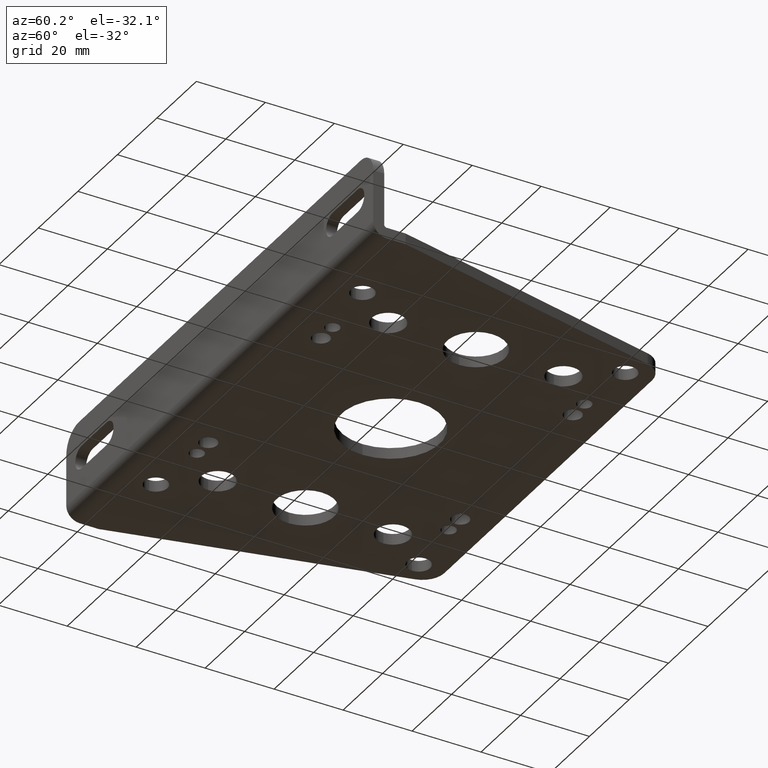
[diagram: clean part render]
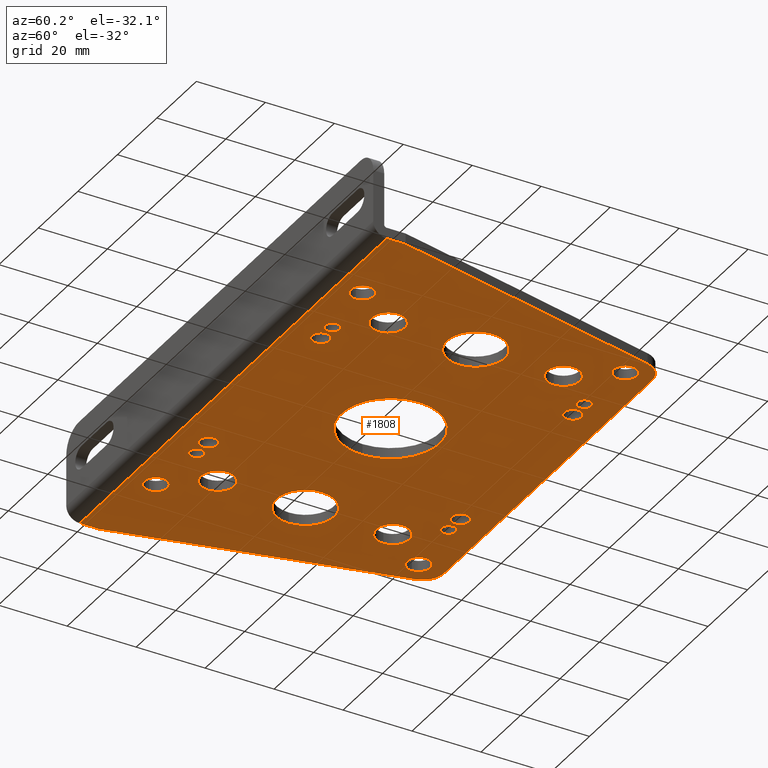
[diagram: same view with one face highlighted and labeled with its STEP entity id]
A machine part, auxiliary view. The second image highlights one B-rep face of the part: STEP entity #1808.
In plain terms, the highlighted planar face has unit normal (0, 0, 1).
Its self-contained STEP definition (entity closure, byte-faithful):
#3 = FACE_OUTER_BOUND ( 'NONE', #402, .T. ) ;
#8 = EDGE_CURVE ( 'NONE', #2010, #1952, #1980, .T. ) ;
#11 = VERTEX_POINT ( 'NONE', #990 ) ;
#26 = EDGE_LOOP ( 'NONE', ( #1061, #1508 ) ) ;
#27 = VERTEX_POINT ( 'NONE', #2195 ) ;
#28 = DIRECTION ( 'NONE',  ( 0.0000000000000000000, 0.0000000000000000000, 1.000000000000000000 ) ) ;
#29 = CARTESIAN_POINT ( 'NONE',  ( 3.061999999999999800, 1.825000000000001500, -0.1250000000000000000 ) ) ;
#30 = CIRCLE ( 'NONE', #1020, 0.1899999999999998900 ) ;
#42 = DIRECTION ( 'NONE',  ( 1.000000000000000000, 0.0000000000000000000, 0.0000000000000000000 ) ) ;
#43 = CARTESIAN_POINT ( 'NONE',  ( 4.760000000000000700, 1.825000000000001500, -0.1250000000000000000 ) ) ;
#61 = FACE_BOUND ( 'NONE', #26, .T. ) ;
#68 = ORIENTED_EDGE ( 'NONE', *, *, #83, .F. ) ;
#72 = DIRECTION ( 'NONE',  ( 1.000000000000000000, 0.0000000000000000000, 0.0000000000000000000 ) ) ;
#83 = EDGE_CURVE ( 'NONE', #1598, #1240, #979, .T. ) ;
#84 = FACE_BOUND ( 'NONE', #2259, .T. ) ;
#85 = CARTESIAN_POINT ( 'NONE',  ( 5.375133197209614800, 3.431898472698106300, -0.1250000000000000000 ) ) ;
#86 = DIRECTION ( 'NONE',  ( 1.000000000000000000, 0.0000000000000000000, 0.0000000000000000000 ) ) ;
#87 = AXIS2_PLACEMENT_3D ( 'NONE', #936, #1120, #42 ) ;
#90 = CARTESIAN_POINT ( 'NONE',  ( 0.0000000000000000000, 0.02899999999999998400, -0.1250000000000000000 ) ) ;
#101 = EDGE_CURVE ( 'NONE', #1705, #1268, #1849, .T. ) ;
#102 = CARTESIAN_POINT ( 'NONE',  ( 6.120000000000000100, 0.2450000000000016300, -0.1250000000000000000 ) ) ;
#127 = VERTEX_POINT ( 'NONE', #312 ) ;
#135 = DIRECTION ( 'NONE',  ( 0.0000000000000000000, 0.0000000000000000000, 1.000000000000000000 ) ) ;
#136 = EDGE_CURVE ( 'NONE', #2199, #924, #1796, .T. ) ;
#138 = CARTESIAN_POINT ( 'NONE',  ( 1.133000000000000000, 0.3250000000000015700, -0.1250000000000000000 ) ) ;
#142 = CARTESIAN_POINT ( 'NONE',  ( 4.182000000000000400, 3.263000000000001200, -0.1250000000000000000 ) ) ;
#146 = FACE_BOUND ( 'NONE', #343, .T. ) ;
#149 = DIRECTION ( 'NONE',  ( 1.000000000000000000, 0.0000000000000000000, 0.0000000000000000000 ) ) ;
#151 = EDGE_CURVE ( 'NONE', #511, #394, #1741, .T. ) ;
#153 = VERTEX_POINT ( 'NONE', #1018 ) ;
#162 = AXIS2_PLACEMENT_3D ( 'NONE', #678, #1913, #862 ) ;
#165 = ORIENTED_EDGE ( 'NONE', *, *, #2299, .T. ) ;
#173 = VERTEX_POINT ( 'NONE', #1909 ) ;
#175 = ORIENTED_EDGE ( 'NONE', *, *, #1743, .T. ) ;
#176 = AXIS2_PLACEMENT_3D ( 'NONE', #1993, #943, #2168 ) ;
#181 = EDGE_CURVE ( 'NONE', #173, #938, #2214, .T. ) ;
#182 = ORIENTED_EDGE ( 'NONE', *, *, #1531, .T. ) ;
#183 = CARTESIAN_POINT ( 'NONE',  ( 1.626499999999999400, 0.3870000000000016200, -0.1250000000000000000 ) ) ;
#189 = CARTESIAN_POINT ( 'NONE',  ( 1.169999999999999700, 2.825000000000001100, -0.1250000000000000000 ) ) ;
#191 = DIRECTION ( 'NONE',  ( -0.0000000000000000000, -0.0000000000000000000, -1.000000000000000000 ) ) ;
#200 = VERTEX_POINT ( 'NONE', #384 ) ;
#210 = ORIENTED_EDGE ( 'NONE', *, *, #750, .T. ) ;
#215 = DIRECTION ( 'NONE',  ( 1.000000000000000000, 0.0000000000000000000, 0.0000000000000000000 ) ) ;
#226 = CARTESIAN_POINT ( 'NONE',  ( 0.7448668027903855300, 3.431898472698106300, -0.1250000000000000000 ) ) ;
#228 = DIRECTION ( 'NONE',  ( 1.000000000000000000, 0.0000000000000000000, -0.0000000000000000000 ) ) ;
#233 = ORIENTED_EDGE ( 'NONE', *, *, #314, .T. ) ;
#234 = CARTESIAN_POINT ( 'NONE',  ( 4.760000000000000700, 0.8250000000000017300, -0.1250000000000000000 ) ) ;
#239 = VERTEX_POINT ( 'NONE', #85 ) ;
#242 = CARTESIAN_POINT ( 'NONE',  ( 1.359999999999999700, 1.825000000000001500, -0.1250000000000000000 ) ) ;
#246 = AXIS2_PLACEMENT_3D ( 'NONE', #1794, #745, #1975 ) ;
#260 = VERTEX_POINT ( 'NONE', #1495 ) ;
#272 = CARTESIAN_POINT ( 'NONE',  ( 4.760000000000000700, 2.825000000000001100, -0.1250000000000000000 ) ) ;
#276 = AXIS2_PLACEMENT_3D ( 'NONE', #2265, #1225, #149 ) ;
#280 = ORIENTED_EDGE ( 'NONE', *, *, #909, .T. ) ;
#287 = VERTEX_POINT ( 'NONE', #437 ) ;
#293 = DIRECTION ( 'NONE',  ( -1.000000000000000000, -0.0000000000000000000, -0.0000000000000000000 ) ) ;
#296 = ORIENTED_EDGE ( 'NONE', *, *, #413, .T. ) ;
#308 = DIRECTION ( 'NONE',  ( 1.000000000000000000, 0.0000000000000000000, 0.0000000000000000000 ) ) ;
#312 = CARTESIAN_POINT ( 'NONE',  ( 1.837499999999999900, 3.263000000000001200, -0.1250000000000000000 ) ) ;
#313 = DIRECTION ( 'NONE',  ( 0.2275938907924206500, -0.9737561403523818900, 0.0000000000000000000 ) ) ;
#314 = EDGE_CURVE ( 'NONE', #1754, #710, #1209, .T. ) ;
#315 = EDGE_LOOP ( 'NONE', ( #175, #2258 ) ) ;
#317 = CIRCLE ( 'NONE', #1323, 0.08149999999999993400 ) ;
#319 = CIRCLE ( 'NONE', #1950, 0.5624999999999997800 ) ;
#321 = VERTEX_POINT ( 'NONE', #1522 ) ;
#326 = AXIS2_PLACEMENT_3D ( 'NONE', #720, #1948, #897 ) ;
#330 = AXIS2_PLACEMENT_3D ( 'NONE', #1140, #812, #308 ) ;
#343 = EDGE_LOOP ( 'NONE', ( #1637, #2254 ) ) ;
#344 = EDGE_CURVE ( 'NONE', #2141, #1326, #1660, .T. ) ;
#350 = EDGE_LOOP ( 'NONE', ( #296, #1548 ) ) ;
#359 = VERTEX_POINT ( 'NONE', #624 ) ;
#364 = AXIS2_PLACEMENT_3D ( 'NONE', #1285, #1293, #228 ) ;
#367 = CIRCLE ( 'NONE', #1713, 0.5624999999999997800 ) ;
#372 = EDGE_LOOP ( 'NONE', ( #280, #1030 ) ) ;
#375 = DIRECTION ( 'NONE',  ( 0.0000000000000000000, 1.000000000000000000, 0.0000000000000000000 ) ) ;
#380 = CARTESIAN_POINT ( 'NONE',  ( 4.950000000000000200, 2.825000000000001100, -0.1250000000000000000 ) ) ;
#384 = CARTESIAN_POINT ( 'NONE',  ( 0.9883058378784832500, 3.625000000000000900, -0.1250000000000000000 ) ) ;
#388 = VERTEX_POINT ( 'NONE', #444 ) ;
#392 = EDGE_LOOP ( 'NONE', ( #1087, #1744 ) ) ;
#394 = VERTEX_POINT ( 'NONE', #1718 ) ;
#395 = CARTESIAN_POINT ( 'NONE',  ( 4.987000000000001000, 3.325000000000001100, -0.1250000000000000000 ) ) ;
#402 = EDGE_LOOP ( 'NONE', ( #2118, #2060, #2055, #68, #619, #1097, #1577, #1062 ) ) ;
#412 = DIRECTION ( 'NONE',  ( 1.000000000000000000, 0.0000000000000000000, 0.0000000000000000000 ) ) ;
#413 = EDGE_CURVE ( 'NONE', #1952, #2010, #1502, .T. ) ;
#416 = CARTESIAN_POINT ( 'NONE',  ( 5.119000000000000700, 3.325000000000001100, -0.1250000000000000000 ) ) ;
#418 = AXIS2_PLACEMENT_3D ( 'NONE', #272, #1518, #2038 ) ;
#421 = EDGE_LOOP ( 'NONE', ( #210, #635 ) ) ;
#422 = DIRECTION ( 'NONE',  ( 1.000000000000000000, 0.0000000000000000000, 0.0000000000000000000 ) ) ;
#437 = CARTESIAN_POINT ( 'NONE',  ( 0.0000000000000000000, 0.2450000000000007400, -0.1250000000000000000 ) ) ;
#438 = VECTOR ( 'NONE', #313, 39.37007874015748900 ) ;
#444 = CARTESIAN_POINT ( 'NONE',  ( 4.430000000000000600, 1.825000000000001500, -0.1250000000000000000 ) ) ;
#451 = DIRECTION ( 'NONE',  ( 0.0000000000000000000, 0.0000000000000000000, 1.000000000000000000 ) ) ;
#452 = CIRCLE ( 'NONE', #2234, 0.1319999999999999800 ) ;
#453 = DIRECTION ( 'NONE',  ( 0.0000000000000000000, 0.0000000000000000000, 1.000000000000000000 ) ) ;
#457 = AXIS2_PLACEMENT_3D ( 'NONE', #1513, #451, #1683 ) ;
#487 = FACE_BOUND ( 'NONE', #629, .T. ) ;
#493 = CARTESIAN_POINT ( 'NONE',  ( 5.330000000000000100, 3.625000000000000900, -0.1250000000000000000 ) ) ;
#502 = LINE ( 'NONE', #1033, #1388 ) ;
#511 = VERTEX_POINT ( 'NONE', #1316 ) ;
#513 = EDGE_LOOP ( 'NONE', ( #1111, #165 ) ) ;
#521 = CARTESIAN_POINT ( 'NONE',  ( 2.038500000000000000, 3.263000000000001200, -0.1250000000000000000 ) ) ;
#526 = CARTESIAN_POINT ( 'NONE',  ( 1.029999999999999600, 1.825000000000001500, -0.1250000000000000000 ) ) ;
#537 = LINE ( 'NONE', #2138, #789 ) ;
#538 = CIRCLE ( 'NONE', #457, 0.1004999999999999200 ) ;
#540 = FACE_BOUND ( 'NONE', #1220, .T. ) ;
#542 = DIRECTION ( 'NONE',  ( 1.000000000000000000, 0.0000000000000000000, 0.0000000000000000000 ) ) ;
#545 = VERTEX_POINT ( 'NONE', #1833 ) ;
#546 = ORIENTED_EDGE ( 'NONE', *, *, #1716, .T. ) ;
#556 = CARTESIAN_POINT ( 'NONE',  ( 4.182000000000000400, 0.3870000000000016200, -0.1250000000000000000 ) ) ;
#561 = FACE_BOUND ( 'NONE', #1377, .T. ) ;
#562 = DIRECTION ( 'NONE',  ( 0.0000000000000000000, 0.0000000000000000000, 1.000000000000000000 ) ) ;
#564 = ORIENTED_EDGE ( 'NONE', *, *, #101, .T. ) ;
#579 = CARTESIAN_POINT ( 'NONE',  ( 1.000999999999999900, 3.325000000000001100, -0.1250000000000000000 ) ) ;
#595 = DIRECTION ( 'NONE',  ( 1.000000000000000000, 0.0000000000000000000, 0.0000000000000000000 ) ) ;
#598 = ORIENTED_EDGE ( 'NONE', *, *, #1612, .T. ) ;
#608 = DIRECTION ( 'NONE',  ( 0.0000000000000000000, 0.0000000000000000000, 1.000000000000000000 ) ) ;
#613 = FACE_BOUND ( 'NONE', #907, .T. ) ;
#618 = CIRCLE ( 'NONE', #892, 0.1319999999999995600 ) ;
#619 = ORIENTED_EDGE ( 'NONE', *, *, #1824, .T. ) ;
#622 = DIRECTION ( 'NONE',  ( 0.0000000000000000000, 0.0000000000000000000, 1.000000000000000000 ) ) ;
#624 = CARTESIAN_POINT ( 'NONE',  ( 1.837499999999999900, 0.3870000000000016200, -0.1250000000000000000 ) ) ;
#629 = EDGE_LOOP ( 'NONE', ( #2093, #2075 ) ) ;
#635 = ORIENTED_EDGE ( 'NONE', *, *, #2047, .T. ) ;
#646 = CIRCLE ( 'NONE', #326, 0.1004999999999999200 ) ;
#650 = DIRECTION ( 'NONE',  ( 1.000000000000000000, 0.0000000000000000000, 0.0000000000000000000 ) ) ;
#655 = EDGE_CURVE ( 'NONE', #710, #1754, #1879, .T. ) ;
#661 = DIRECTION ( 'NONE',  ( 0.0000000000000000000, 1.000000000000000000, 0.0000000000000000000 ) ) ;
#666 = DIRECTION ( 'NONE',  ( -0.0000000000000000000, -0.0000000000000000000, -1.000000000000000000 ) ) ;
#668 = DIRECTION ( 'NONE',  ( 1.000000000000000000, 0.0000000000000000000, 0.0000000000000000000 ) ) ;
#673 = DIRECTION ( 'NONE',  ( 0.0000000000000000000, 0.0000000000000000000, 1.000000000000000000 ) ) ;
#678 = CARTESIAN_POINT ( 'NONE',  ( 1.000999999999999900, 3.325000000000001100, -0.1250000000000000000 ) ) ;
#693 = CARTESIAN_POINT ( 'NONE',  ( 6.120000000000000100, 0.02899999999999998400, -0.1250000000000000000 ) ) ;
#697 = AXIS2_PLACEMENT_3D ( 'NONE', #1720, #666, #1901 ) ;
#698 = CARTESIAN_POINT ( 'NONE',  ( 5.119000000000000700, 0.3250000000000015700, -0.1250000000000000000 ) ) ;
#705 = VERTEX_POINT ( 'NONE', #947 ) ;
#707 = CIRCLE ( 'NONE', #697, 0.2499999999999998100 ) ;
#708 = EDGE_CURVE ( 'NONE', #1248, #27, #893, .T. ) ;
#710 = VERTEX_POINT ( 'NONE', #1128 ) ;
#712 = ORIENTED_EDGE ( 'NONE', *, *, #2236, .T. ) ;
#714 = AXIS2_PLACEMENT_3D ( 'NONE', #1374, #135, #1208 ) ;
#715 = VERTEX_POINT ( 'NONE', #1641 ) ;
#720 = CARTESIAN_POINT ( 'NONE',  ( 1.937999999999999900, 3.263000000000001200, -0.1250000000000000000 ) ) ;
#721 = VERTEX_POINT ( 'NONE', #226 ) ;
#732 = EDGE_CURVE ( 'NONE', #2173, #715, #950, .T. ) ;
#735 = AXIS2_PLACEMENT_3D ( 'NONE', #698, #879, #1067 ) ;
#737 = CIRCLE ( 'NONE', #176, 0.1899999999999998900 ) ;
#740 = DIRECTION ( 'NONE',  ( 1.000000000000000000, 0.0000000000000000000, 0.0000000000000000000 ) ) ;
#742 = EDGE_CURVE ( 'NONE', #394, #511, #2245, .T. ) ;
#745 = DIRECTION ( 'NONE',  ( 0.0000000000000000000, 0.0000000000000000000, 1.000000000000000000 ) ) ;
#750 = EDGE_CURVE ( 'NONE', #1342, #1112, #1769, .T. ) ;
#758 = DIRECTION ( 'NONE',  ( 1.000000000000000000, 0.0000000000000000000, 0.0000000000000000000 ) ) ;
#759 = CARTESIAN_POINT ( 'NONE',  ( 5.251000000000000300, 0.3250000000000015700, -0.1250000000000000000 ) ) ;
#789 = VECTOR ( 'NONE', #375, 39.37007874015748100 ) ;
#801 = AXIS2_PLACEMENT_3D ( 'NONE', #1261, #191, #1433 ) ;
#805 = CARTESIAN_POINT ( 'NONE',  ( 4.411999999999999900, 0.3870000000000016200, -0.1250000000000000000 ) ) ;
#812 = DIRECTION ( 'NONE',  ( 0.0000000000000000000, 0.0000000000000000000, 1.000000000000000000 ) ) ;
#822 = CARTESIAN_POINT ( 'NONE',  ( 4.282500000000000600, 0.3870000000000016200, -0.1250000000000000000 ) ) ;
#823 = CARTESIAN_POINT ( 'NONE',  ( 1.937999999999999900, 0.3870000000000016200, -0.1250000000000000000 ) ) ;
#842 = DIRECTION ( 'NONE',  ( 0.2275938907924206500, 0.9737561403523818900, 0.0000000000000000000 ) ) ;
#847 = CARTESIAN_POINT ( 'NONE',  ( 5.119000000000000700, 0.3250000000000015700, -0.1250000000000000000 ) ) ;
#850 = CARTESIAN_POINT ( 'NONE',  ( 1.359999999999999700, 1.825000000000001500, -0.1250000000000000000 ) ) ;
#853 = EDGE_CURVE ( 'NONE', #388, #1054, #1819, .T. ) ;
#861 = DIRECTION ( 'NONE',  ( 0.0000000000000000000, 0.0000000000000000000, 1.000000000000000000 ) ) ;
#862 = DIRECTION ( 'NONE',  ( 1.000000000000000000, 0.0000000000000000000, 0.0000000000000000000 ) ) ;
#879 = DIRECTION ( 'NONE',  ( 0.0000000000000000000, 0.0000000000000000000, 1.000000000000000000 ) ) ;
#883 = CARTESIAN_POINT ( 'NONE',  ( 1.707999999999999300, 0.3870000000000016200, -0.1250000000000000000 ) ) ;
#885 = DIRECTION ( 'NONE',  ( 0.0000000000000000000, 0.0000000000000000000, 1.000000000000000000 ) ) ;
#892 = AXIS2_PLACEMENT_3D ( 'NONE', #416, #1654, #595 ) ;
#893 = CIRCLE ( 'NONE', #2146, 0.1005000000000002000 ) ;
#897 = DIRECTION ( 'NONE',  ( 1.000000000000000000, 0.0000000000000000000, 0.0000000000000000000 ) ) ;
#904 = LINE ( 'NONE', #951, #1830 ) ;
#905 = EDGE_LOOP ( 'NONE', ( #233, #1159 ) ) ;
#907 = EDGE_LOOP ( 'NONE', ( #1462, #598 ) ) ;
#909 = EDGE_CURVE ( 'NONE', #1239, #1835, #1304, .T. ) ;
#912 = CARTESIAN_POINT ( 'NONE',  ( 0.8689999999999998800, 3.325000000000001100, -0.1250000000000000000 ) ) ;
#914 = CIRCLE ( 'NONE', #1511, 0.08149999999999993400 ) ;
#923 = AXIS2_PLACEMENT_3D ( 'NONE', #1685, #453, #2175 ) ;
#924 = VERTEX_POINT ( 'NONE', #189 ) ;
#936 = CARTESIAN_POINT ( 'NONE',  ( 4.760000000000000700, 2.825000000000001100, -0.1250000000000000000 ) ) ;
#938 = VERTEX_POINT ( 'NONE', #1593 ) ;
#939 = CARTESIAN_POINT ( 'NONE',  ( 4.182000000000000400, 3.263000000000001200, -0.1250000000000000000 ) ) ;
#943 = DIRECTION ( 'NONE',  ( 0.0000000000000000000, 0.0000000000000000000, 1.000000000000000000 ) ) ;
#945 = VERTEX_POINT ( 'NONE', #526 ) ;
#947 = CARTESIAN_POINT ( 'NONE',  ( 1.689999999999999700, 1.825000000000001500, -0.1250000000000000000 ) ) ;
#950 = CIRCLE ( 'NONE', #923, 0.08149999999999993400 ) ;
#951 = CARTESIAN_POINT ( 'NONE',  ( 6.120000000000000100, 0.02899999999999998400, -0.1250000000000000000 ) ) ;
#954 = AXIS2_PLACEMENT_3D ( 'NONE', #142, #1215, #2256 ) ;
#961 = FACE_BOUND ( 'NONE', #372, .T. ) ;
#974 = CIRCLE ( 'NONE', #714, 0.08149999999999967000 ) ;
#979 = LINE ( 'NONE', #999, #1395 ) ;
#990 = CARTESIAN_POINT ( 'NONE',  ( 2.038500000000000000, 0.3870000000000016200, -0.1250000000000000000 ) ) ;
#992 = AXIS2_PLACEMENT_3D ( 'NONE', #847, #2215, #1171 ) ;
#994 = CARTESIAN_POINT ( 'NONE',  ( 5.251000000000000300, 3.325000000000001100, -0.1250000000000000000 ) ) ;
#998 = CARTESIAN_POINT ( 'NONE',  ( 4.493500000000000000, 0.3870000000000016200, -0.1250000000000000000 ) ) ;
#999 = CARTESIAN_POINT ( 'NONE',  ( 6.120000000000000100, 0.0000000000000000000, -0.1250000000000000000 ) ) ;
#1003 = DIRECTION ( 'NONE',  ( 1.000000000000000000, 0.0000000000000000000, 0.0000000000000000000 ) ) ;
#1018 = CARTESIAN_POINT ( 'NONE',  ( 1.789499999999999200, 0.3870000000000016200, -0.1250000000000000000 ) ) ;
#1020 = AXIS2_PLACEMENT_3D ( 'NONE', #1665, #608, #1841 ) ;
#1024 = EDGE_CURVE ( 'NONE', #1054, #388, #1498, .T. ) ;
#1025 = FACE_BOUND ( 'NONE', #1810, .T. ) ;
#1030 = ORIENTED_EDGE ( 'NONE', *, *, #1983, .T. ) ;
#1032 = DIRECTION ( 'NONE',  ( 1.000000000000000000, 0.0000000000000000000, 0.0000000000000000000 ) ) ;
#1033 = CARTESIAN_POINT ( 'NONE',  ( 0.0000000000000000000, 0.2450000000000008000, -0.1250000000000000000 ) ) ;
#1038 = DIRECTION ( 'NONE',  ( 1.000000000000000000, 0.0000000000000000000, 0.0000000000000000000 ) ) ;
#1041 = CIRCLE ( 'NONE', #954, 0.1005000000000002000 ) ;
#1043 = EDGE_CURVE ( 'NONE', #27, #1248, #1041, .T. ) ;
#1046 = CARTESIAN_POINT ( 'NONE',  ( 4.760000000000000700, 1.825000000000001500, -0.1250000000000000000 ) ) ;
#1048 = EDGE_CURVE ( 'NONE', #945, #705, #1906, .T. ) ;
#1049 = FACE_BOUND ( 'NONE', #315, .T. ) ;
#1053 = ORIENTED_EDGE ( 'NONE', *, *, #136, .T. ) ;
#1054 = VERTEX_POINT ( 'NONE', #1385 ) ;
#1055 = AXIS2_PLACEMENT_3D ( 'NONE', #234, #1474, #412 ) ;
#1061 = ORIENTED_EDGE ( 'NONE', *, *, #1845, .T. ) ;
#1062 = ORIENTED_EDGE ( 'NONE', *, *, #1538, .T. ) ;
#1067 = DIRECTION ( 'NONE',  ( 1.000000000000000000, 0.0000000000000000000, 0.0000000000000000000 ) ) ;
#1070 = DIRECTION ( 'NONE',  ( 1.000000000000000000, 0.0000000000000000000, 0.0000000000000000000 ) ) ;
#1071 = EDGE_CURVE ( 'NONE', #1326, #2141, #974, .T. ) ;
#1075 = EDGE_CURVE ( 'NONE', #287, #721, #502, .T. ) ;
#1078 = ORIENTED_EDGE ( 'NONE', *, *, #1071, .T. ) ;
#1079 = CIRCLE ( 'NONE', #1669, 0.08149999999999993400 ) ;
#1082 = ORIENTED_EDGE ( 'NONE', *, *, #344, .T. ) ;
#1083 = AXIS2_PLACEMENT_3D ( 'NONE', #850, #1903, #668 ) ;
#1084 = DIRECTION ( 'NONE',  ( 1.000000000000000000, 0.0000000000000000000, 0.0000000000000000000 ) ) ;
#1087 = ORIENTED_EDGE ( 'NONE', *, *, #742, .T. ) ;
#1092 = EDGE_CURVE ( 'NONE', #239, #1240, #1443, .T. ) ;
#1097 = ORIENTED_EDGE ( 'NONE', *, *, #1727, .T. ) ;
#1098 = FACE_BOUND ( 'NONE', #513, .T. ) ;
#1108 = CARTESIAN_POINT ( 'NONE',  ( 4.411999999999999900, 3.263000000000001200, -0.1250000000000000000 ) ) ;
#1111 = ORIENTED_EDGE ( 'NONE', *, *, #2205, .T. ) ;
#1112 = VERTEX_POINT ( 'NONE', #1199 ) ;
#1115 = ORIENTED_EDGE ( 'NONE', *, *, #2015, .T. ) ;
#1120 = DIRECTION ( 'NONE',  ( 0.0000000000000000000, 0.0000000000000000000, 1.000000000000000000 ) ) ;
#1121 = DIRECTION ( 'NONE',  ( 1.000000000000000000, 0.0000000000000000000, 0.0000000000000000000 ) ) ;
#1124 = EDGE_CURVE ( 'NONE', #1297, #200, #1328, .T. ) ;
#1126 = ORIENTED_EDGE ( 'NONE', *, *, #1861, .T. ) ;
#1128 = CARTESIAN_POINT ( 'NONE',  ( 4.570000000000001200, 2.825000000000001100, -0.1250000000000000000 ) ) ;
#1131 = ORIENTED_EDGE ( 'NONE', *, *, #1885, .T. ) ;
#1140 = CARTESIAN_POINT ( 'NONE',  ( 1.001000000000000100, 0.3250000000000015700, -0.1250000000000000000 ) ) ;
#1146 = ORIENTED_EDGE ( 'NONE', *, *, #1024, .T. ) ;
#1148 = DIRECTION ( 'NONE',  ( 0.0000000000000000000, 0.0000000000000000000, 1.000000000000000000 ) ) ;
#1152 = VERTEX_POINT ( 'NONE', #912 ) ;
#1158 = CARTESIAN_POINT ( 'NONE',  ( 1.549999999999999600, 2.825000000000001100, -0.1250000000000000000 ) ) ;
#1159 = ORIENTED_EDGE ( 'NONE', *, *, #655, .T. ) ;
#1161 = DIRECTION ( 'NONE',  ( 0.0000000000000000000, 0.0000000000000000000, 1.000000000000000000 ) ) ;
#1168 = ORIENTED_EDGE ( 'NONE', *, *, #1043, .T. ) ;
#1171 = DIRECTION ( 'NONE',  ( 1.000000000000000000, 0.0000000000000000000, 0.0000000000000000000 ) ) ;
#1176 = CARTESIAN_POINT ( 'NONE',  ( 3.624499999999999400, 1.825000000000001500, -0.1250000000000000000 ) ) ;
#1190 = ORIENTED_EDGE ( 'NONE', *, *, #853, .T. ) ;
#1193 = VERTEX_POINT ( 'NONE', #90 ) ;
#1197 = CARTESIAN_POINT ( 'NONE',  ( 1.626499999999999400, 3.263000000000001200, -0.1250000000000000000 ) ) ;
#1199 = CARTESIAN_POINT ( 'NONE',  ( 0.8690000000000001100, 0.3250000000000015700, -0.1250000000000000000 ) ) ;
#1208 = DIRECTION ( 'NONE',  ( 1.000000000000000000, 0.0000000000000000000, 0.0000000000000000000 ) ) ;
#1209 = CIRCLE ( 'NONE', #418, 0.1899999999999998900 ) ;
#1214 = AXIS2_PLACEMENT_3D ( 'NONE', #556, #1787, #740 ) ;
#1215 = DIRECTION ( 'NONE',  ( 0.0000000000000000000, 0.0000000000000000000, 1.000000000000000000 ) ) ;
#1220 = EDGE_LOOP ( 'NONE', ( #1131, #1126 ) ) ;
#1225 = DIRECTION ( 'NONE',  ( 0.0000000000000000000, 0.0000000000000000000, 1.000000000000000000 ) ) ;
#1235 = AXIS2_PLACEMENT_3D ( 'NONE', #2084, #1545, #1038 ) ;
#1239 = VERTEX_POINT ( 'NONE', #994 ) ;
#1240 = VERTEX_POINT ( 'NONE', #102 ) ;
#1248 = VERTEX_POINT ( 'NONE', #1858 ) ;
#1256 = AXIS2_PLACEMENT_3D ( 'NONE', #242, #1486, #422 ) ;
#1258 = CARTESIAN_POINT ( 'NONE',  ( 5.119000000000000700, 3.325000000000001100, -0.1250000000000000000 ) ) ;
#1261 = CARTESIAN_POINT ( 'NONE',  ( 0.9883058378784812500, 3.375000000000000900, -0.1250000000000000000 ) ) ;
#1266 = FACE_BOUND ( 'NONE', #2128, .T. ) ;
#1267 = CIRCLE ( 'NONE', #1256, 0.3300000000000000200 ) ;
#1268 = VERTEX_POINT ( 'NONE', #822 ) ;
#1277 = DIRECTION ( 'NONE',  ( 1.000000000000000000, 0.0000000000000000000, 0.0000000000000000000 ) ) ;
#1279 = DIRECTION ( 'NONE',  ( 0.0000000000000000000, 0.0000000000000000000, 1.000000000000000000 ) ) ;
#1285 = CARTESIAN_POINT ( 'NONE',  ( 6.120000000000000100, 0.0000000000000000000, -0.1250000000000000000 ) ) ;
#1293 = DIRECTION ( 'NONE',  ( 0.0000000000000000000, 0.0000000000000000000, 1.000000000000000000 ) ) ;
#1297 = VERTEX_POINT ( 'NONE', #1877 ) ;
#1304 = CIRCLE ( 'NONE', #1989, 0.1319999999999995600 ) ;
#1314 = CIRCLE ( 'NONE', #246, 0.1899999999999998900 ) ;
#1316 = CARTESIAN_POINT ( 'NONE',  ( 4.570000000000000300, 0.8250000000000017300, -0.1250000000000000000 ) ) ;
#1323 = AXIS2_PLACEMENT_3D ( 'NONE', #1621, #562, #1793 ) ;
#1326 = VERTEX_POINT ( 'NONE', #1717 ) ;
#1328 = LINE ( 'NONE', #1535, #2208 ) ;
#1330 = DIRECTION ( 'NONE',  ( 0.0000000000000000000, 0.0000000000000000000, 1.000000000000000000 ) ) ;
#1342 = VERTEX_POINT ( 'NONE', #138 ) ;
#1374 = CARTESIAN_POINT ( 'NONE',  ( 4.411999999999999900, 0.3870000000000016200, -0.1250000000000000000 ) ) ;
#1377 = EDGE_LOOP ( 'NONE', ( #1053, #2036 ) ) ;
#1379 = CIRCLE ( 'NONE', #1919, 0.1004999999999999200 ) ;
#1385 = CARTESIAN_POINT ( 'NONE',  ( 5.090000000000000700, 1.825000000000001500, -0.1250000000000000000 ) ) ;
#1388 = VECTOR ( 'NONE', #842, 39.37007874015748900 ) ;
#1391 = EDGE_CURVE ( 'NONE', #1152, #321, #1552, .T. ) ;
#1395 = VECTOR ( 'NONE', #661, 39.37007874015748100 ) ;
#1412 = ORIENTED_EDGE ( 'NONE', *, *, #1876, .T. ) ;
#1415 = EDGE_CURVE ( 'NONE', #938, #173, #1494, .T. ) ;
#1419 = AXIS2_PLACEMENT_3D ( 'NONE', #2073, #2248, #650 ) ;
#1430 = FACE_BOUND ( 'NONE', #350, .T. ) ;
#1433 = DIRECTION ( 'NONE',  ( 1.000000000000000000, 0.0000000000000000000, 0.0000000000000000000 ) ) ;
#1434 = EDGE_LOOP ( 'NONE', ( #546, #564 ) ) ;
#1443 = LINE ( 'NONE', #493, #438 ) ;
#1449 = FACE_BOUND ( 'NONE', #905, .T. ) ;
#1462 = ORIENTED_EDGE ( 'NONE', *, *, #1485, .T. ) ;
#1474 = DIRECTION ( 'NONE',  ( 0.0000000000000000000, 0.0000000000000000000, 1.000000000000000000 ) ) ;
#1485 = EDGE_CURVE ( 'NONE', #153, #1543, #914, .T. ) ;
#1486 = DIRECTION ( 'NONE',  ( 0.0000000000000000000, 0.0000000000000000000, 1.000000000000000000 ) ) ;
#1487 = CARTESIAN_POINT ( 'NONE',  ( 4.987000000000001000, 0.3250000000000015700, -0.1250000000000000000 ) ) ;
#1492 = AXIS2_PLACEMENT_3D ( 'NONE', #805, #1330, #1676 ) ;
#1494 = CIRCLE ( 'NONE', #276, 0.08150000000000021100 ) ;
#1495 = CARTESIAN_POINT ( 'NONE',  ( 2.499499999999999800, 1.825000000000001500, -0.1250000000000000000 ) ) ;
#1498 = CIRCLE ( 'NONE', #2069, 0.3300000000000000200 ) ;
#1502 = CIRCLE ( 'NONE', #735, 0.1319999999999995600 ) ;
#1505 = FACE_BOUND ( 'NONE', #1763, .T. ) ;
#1508 = ORIENTED_EDGE ( 'NONE', *, *, #1048, .T. ) ;
#1511 = AXIS2_PLACEMENT_3D ( 'NONE', #1934, #885, #2114 ) ;
#1513 = CARTESIAN_POINT ( 'NONE',  ( 1.937999999999999900, 3.263000000000001200, -0.1250000000000000000 ) ) ;
#1518 = DIRECTION ( 'NONE',  ( 0.0000000000000000000, 0.0000000000000000000, 1.000000000000000000 ) ) ;
#1522 = CARTESIAN_POINT ( 'NONE',  ( 1.133000000000000000, 3.325000000000001100, -0.1250000000000000000 ) ) ;
#1531 = EDGE_CURVE ( 'NONE', #127, #1619, #646, .T. ) ;
#1535 = CARTESIAN_POINT ( 'NONE',  ( 6.120000000000000100, 3.625000000000000900, -0.1250000000000000000 ) ) ;
#1538 = EDGE_CURVE ( 'NONE', #721, #200, #2186, .T. ) ;
#1543 = VERTEX_POINT ( 'NONE', #183 ) ;
#1545 = DIRECTION ( 'NONE',  ( 0.0000000000000000000, 0.0000000000000000000, 1.000000000000000000 ) ) ;
#1548 = ORIENTED_EDGE ( 'NONE', *, *, #8, .T. ) ;
#1552 = CIRCLE ( 'NONE', #162, 0.1319999999999999800 ) ;
#1560 = FACE_BOUND ( 'NONE', #1434, .T. ) ;
#1577 = ORIENTED_EDGE ( 'NONE', *, *, #1075, .T. ) ;
#1593 = CARTESIAN_POINT ( 'NONE',  ( 4.493500000000000900, 3.263000000000001200, -0.1250000000000000000 ) ) ;
#1598 = VERTEX_POINT ( 'NONE', #693 ) ;
#1612 = EDGE_CURVE ( 'NONE', #1543, #153, #1079, .T. ) ;
#1619 = VERTEX_POINT ( 'NONE', #521 ) ;
#1621 = CARTESIAN_POINT ( 'NONE',  ( 1.707999999999999300, 3.263000000000001200, -0.1250000000000000000 ) ) ;
#1634 = PLANE ( 'NONE',  #364 ) ;
#1637 = ORIENTED_EDGE ( 'NONE', *, *, #1415, .T. ) ;
#1641 = CARTESIAN_POINT ( 'NONE',  ( 1.789499999999999200, 3.263000000000001200, -0.1250000000000000000 ) ) ;
#1654 = DIRECTION ( 'NONE',  ( 0.0000000000000000000, 0.0000000000000000000, 1.000000000000000000 ) ) ;
#1660 = CIRCLE ( 'NONE', #1492, 0.08149999999999967000 ) ;
#1665 = CARTESIAN_POINT ( 'NONE',  ( 1.359999999999999700, 0.8250000000000017300, -0.1250000000000000000 ) ) ;
#1669 = AXIS2_PLACEMENT_3D ( 'NONE', #883, #2111, #1070 ) ;
#1675 = CARTESIAN_POINT ( 'NONE',  ( 1.937999999999999900, 0.3870000000000016200, -0.1250000000000000000 ) ) ;
#1676 = DIRECTION ( 'NONE',  ( 1.000000000000000000, 0.0000000000000000000, 0.0000000000000000000 ) ) ;
#1683 = DIRECTION ( 'NONE',  ( 1.000000000000000000, 0.0000000000000000000, 0.0000000000000000000 ) ) ;
#1685 = CARTESIAN_POINT ( 'NONE',  ( 1.707999999999999300, 3.263000000000001200, -0.1250000000000000000 ) ) ;
#1705 = VERTEX_POINT ( 'NONE', #1961 ) ;
#1713 = AXIS2_PLACEMENT_3D ( 'NONE', #29, #1279, #215 ) ;
#1716 = EDGE_CURVE ( 'NONE', #1268, #1705, #1776, .T. ) ;
#1717 = CARTESIAN_POINT ( 'NONE',  ( 4.330500000000000700, 0.3870000000000016200, -0.1250000000000000000 ) ) ;
#1718 = CARTESIAN_POINT ( 'NONE',  ( 4.950000000000000200, 0.8250000000000017300, -0.1250000000000000000 ) ) ;
#1720 = CARTESIAN_POINT ( 'NONE',  ( 5.131694162121519300, 3.375000000000000900, -0.1250000000000000000 ) ) ;
#1727 = EDGE_CURVE ( 'NONE', #1193, #287, #537, .T. ) ;
#1741 = CIRCLE ( 'NONE', #1881, 0.1899999999999998900 ) ;
#1743 = EDGE_CURVE ( 'NONE', #715, #2173, #317, .T. ) ;
#1744 = ORIENTED_EDGE ( 'NONE', *, *, #151, .T. ) ;
#1747 = AXIS2_PLACEMENT_3D ( 'NONE', #43, #2137, #542 ) ;
#1754 = VERTEX_POINT ( 'NONE', #380 ) ;
#1762 = AXIS2_PLACEMENT_3D ( 'NONE', #1108, #28, #1277 ) ;
#1763 = EDGE_LOOP ( 'NONE', ( #712, #182 ) ) ;
#1769 = CIRCLE ( 'NONE', #330, 0.1319999999999999800 ) ;
#1776 = CIRCLE ( 'NONE', #1214, 0.1005000000000002000 ) ;
#1787 = DIRECTION ( 'NONE',  ( 0.0000000000000000000, 0.0000000000000000000, 1.000000000000000000 ) ) ;
#1793 = DIRECTION ( 'NONE',  ( 1.000000000000000000, 0.0000000000000000000, 0.0000000000000000000 ) ) ;
#1794 = CARTESIAN_POINT ( 'NONE',  ( 1.359999999999999700, 0.8250000000000017300, -0.1250000000000000000 ) ) ;
#1796 = CIRCLE ( 'NONE', #1235, 0.1899999999999998900 ) ;
#1798 = EDGE_CURVE ( 'NONE', #321, #1152, #2026, .T. ) ;
#1808 = ADVANCED_FACE ( 'NONE', ( #1266, #1560, #1098, #613, #146, #1966, #1505, #1049, #561, #84, #1916, #1449, #1025, #540, #61, #1893, #1430, #961, #487, #3 ), #1634, .F. ) ;
#1809 = DIRECTION ( 'NONE',  ( 0.0000000000000000000, 0.0000000000000000000, 1.000000000000000000 ) ) ;
#1810 = EDGE_LOOP ( 'NONE', ( #1146, #1190 ) ) ;
#1819 = CIRCLE ( 'NONE', #1747, 0.3300000000000000200 ) ;
#1824 = EDGE_CURVE ( 'NONE', #1598, #1193, #904, .T. ) ;
#1830 = VECTOR ( 'NONE', #2176, 39.37007874015748100 ) ;
#1833 = CARTESIAN_POINT ( 'NONE',  ( 1.169999999999999700, 0.8250000000000017300, -0.1250000000000000000 ) ) ;
#1835 = VERTEX_POINT ( 'NONE', #395 ) ;
#1841 = DIRECTION ( 'NONE',  ( 1.000000000000000000, 0.0000000000000000000, 0.0000000000000000000 ) ) ;
#1845 = EDGE_CURVE ( 'NONE', #705, #945, #1267, .T. ) ;
#1849 = CIRCLE ( 'NONE', #1419, 0.1005000000000002000 ) ;
#1851 = DIRECTION ( 'NONE',  ( 1.000000000000000000, 0.0000000000000000000, 0.0000000000000000000 ) ) ;
#1858 = CARTESIAN_POINT ( 'NONE',  ( 4.282500000000000600, 3.263000000000001200, -0.1250000000000000000 ) ) ;
#1861 = EDGE_CURVE ( 'NONE', #260, #2123, #319, .T. ) ;
#1866 = EDGE_LOOP ( 'NONE', ( #2031, #1168 ) ) ;
#1876 = EDGE_CURVE ( 'NONE', #545, #2054, #1314, .T. ) ;
#1877 = CARTESIAN_POINT ( 'NONE',  ( 5.131694162121519300, 3.625000000000000900, -0.1250000000000000000 ) ) ;
#1879 = CIRCLE ( 'NONE', #87, 0.1899999999999998900 ) ;
#1881 = AXIS2_PLACEMENT_3D ( 'NONE', #1892, #673, #1032 ) ;
#1885 = EDGE_CURVE ( 'NONE', #2123, #260, #367, .T. ) ;
#1892 = CARTESIAN_POINT ( 'NONE',  ( 4.760000000000000700, 0.8250000000000017300, -0.1250000000000000000 ) ) ;
#1893 = FACE_BOUND ( 'NONE', #421, .T. ) ;
#1901 = DIRECTION ( 'NONE',  ( 1.000000000000000000, 0.0000000000000000000, 0.0000000000000000000 ) ) ;
#1903 = DIRECTION ( 'NONE',  ( 0.0000000000000000000, 0.0000000000000000000, 1.000000000000000000 ) ) ;
#1906 = CIRCLE ( 'NONE', #1083, 0.3300000000000000200 ) ;
#1909 = CARTESIAN_POINT ( 'NONE',  ( 4.330499999999999800, 3.263000000000001200, -0.1250000000000000000 ) ) ;
#1911 = DIRECTION ( 'NONE',  ( 1.000000000000000000, 0.0000000000000000000, 0.0000000000000000000 ) ) ;
#1913 = DIRECTION ( 'NONE',  ( 0.0000000000000000000, 0.0000000000000000000, 1.000000000000000000 ) ) ;
#1916 = FACE_BOUND ( 'NONE', #392, .T. ) ;
#1919 = AXIS2_PLACEMENT_3D ( 'NONE', #823, #2052, #1003 ) ;
#1934 = CARTESIAN_POINT ( 'NONE',  ( 1.707999999999999300, 0.3870000000000016200, -0.1250000000000000000 ) ) ;
#1941 = EDGE_CURVE ( 'NONE', #924, #2199, #737, .T. ) ;
#1944 = CIRCLE ( 'NONE', #2040, 0.1004999999999999200 ) ;
#1948 = DIRECTION ( 'NONE',  ( 0.0000000000000000000, 0.0000000000000000000, 1.000000000000000000 ) ) ;
#1950 = AXIS2_PLACEMENT_3D ( 'NONE', #2191, #1148, #72 ) ;
#1952 = VERTEX_POINT ( 'NONE', #759 ) ;
#1961 = CARTESIAN_POINT ( 'NONE',  ( 4.081500000000000100, 0.3870000000000016200, -0.1250000000000000000 ) ) ;
#1966 = FACE_BOUND ( 'NONE', #1866, .T. ) ;
#1975 = DIRECTION ( 'NONE',  ( 1.000000000000000000, 0.0000000000000000000, 0.0000000000000000000 ) ) ;
#1980 = CIRCLE ( 'NONE', #992, 0.1319999999999995600 ) ;
#1983 = EDGE_CURVE ( 'NONE', #1835, #1239, #618, .T. ) ;
#1989 = AXIS2_PLACEMENT_3D ( 'NONE', #1258, #2297, #1084 ) ;
#1993 = CARTESIAN_POINT ( 'NONE',  ( 1.359999999999999700, 2.825000000000001100, -0.1250000000000000000 ) ) ;
#2010 = VERTEX_POINT ( 'NONE', #1487 ) ;
#2015 = EDGE_CURVE ( 'NONE', #2054, #545, #30, .T. ) ;
#2026 = CIRCLE ( 'NONE', #2074, 0.1319999999999999800 ) ;
#2029 = CARTESIAN_POINT ( 'NONE',  ( 1.549999999999999600, 0.8250000000000017300, -0.1250000000000000000 ) ) ;
#2031 = ORIENTED_EDGE ( 'NONE', *, *, #708, .T. ) ;
#2036 = ORIENTED_EDGE ( 'NONE', *, *, #1941, .T. ) ;
#2038 = DIRECTION ( 'NONE',  ( 1.000000000000000000, 0.0000000000000000000, 0.0000000000000000000 ) ) ;
#2040 = AXIS2_PLACEMENT_3D ( 'NONE', #1675, #622, #1851 ) ;
#2047 = EDGE_CURVE ( 'NONE', #1112, #1342, #452, .T. ) ;
#2052 = DIRECTION ( 'NONE',  ( 0.0000000000000000000, 0.0000000000000000000, 1.000000000000000000 ) ) ;
#2054 = VERTEX_POINT ( 'NONE', #2029 ) ;
#2055 = ORIENTED_EDGE ( 'NONE', *, *, #1092, .T. ) ;
#2060 = ORIENTED_EDGE ( 'NONE', *, *, #2189, .T. ) ;
#2069 = AXIS2_PLACEMENT_3D ( 'NONE', #1046, #861, #1911 ) ;
#2073 = CARTESIAN_POINT ( 'NONE',  ( 4.182000000000000400, 0.3870000000000016200, -0.1250000000000000000 ) ) ;
#2074 = AXIS2_PLACEMENT_3D ( 'NONE', #579, #1809, #758 ) ;
#2075 = ORIENTED_EDGE ( 'NONE', *, *, #1391, .T. ) ;
#2084 = CARTESIAN_POINT ( 'NONE',  ( 1.359999999999999700, 2.825000000000001100, -0.1250000000000000000 ) ) ;
#2093 = ORIENTED_EDGE ( 'NONE', *, *, #1798, .T. ) ;
#2111 = DIRECTION ( 'NONE',  ( 0.0000000000000000000, 0.0000000000000000000, 1.000000000000000000 ) ) ;
#2114 = DIRECTION ( 'NONE',  ( 1.000000000000000000, 0.0000000000000000000, 0.0000000000000000000 ) ) ;
#2118 = ORIENTED_EDGE ( 'NONE', *, *, #1124, .F. ) ;
#2123 = VERTEX_POINT ( 'NONE', #1176 ) ;
#2128 = EDGE_LOOP ( 'NONE', ( #1082, #1078 ) ) ;
#2137 = DIRECTION ( 'NONE',  ( 0.0000000000000000000, 0.0000000000000000000, 1.000000000000000000 ) ) ;
#2138 = CARTESIAN_POINT ( 'NONE',  ( 0.0000000000000000000, 0.0000000000000000000, -0.1250000000000000000 ) ) ;
#2141 = VERTEX_POINT ( 'NONE', #998 ) ;
#2146 = AXIS2_PLACEMENT_3D ( 'NONE', #939, #2165, #1121 ) ;
#2165 = DIRECTION ( 'NONE',  ( 0.0000000000000000000, 0.0000000000000000000, 1.000000000000000000 ) ) ;
#2168 = DIRECTION ( 'NONE',  ( 1.000000000000000000, 0.0000000000000000000, 0.0000000000000000000 ) ) ;
#2173 = VERTEX_POINT ( 'NONE', #1197 ) ;
#2175 = DIRECTION ( 'NONE',  ( 1.000000000000000000, 0.0000000000000000000, 0.0000000000000000000 ) ) ;
#2176 = DIRECTION ( 'NONE',  ( -1.000000000000000000, -0.0000000000000000000, -0.0000000000000000000 ) ) ;
#2186 = CIRCLE ( 'NONE', #801, 0.2499999999999999200 ) ;
#2189 = EDGE_CURVE ( 'NONE', #1297, #239, #707, .T. ) ;
#2191 = CARTESIAN_POINT ( 'NONE',  ( 3.061999999999999800, 1.825000000000001500, -0.1250000000000000000 ) ) ;
#2195 = CARTESIAN_POINT ( 'NONE',  ( 4.081500000000000100, 3.263000000000001200, -0.1250000000000000000 ) ) ;
#2199 = VERTEX_POINT ( 'NONE', #1158 ) ;
#2205 = EDGE_CURVE ( 'NONE', #11, #359, #1944, .T. ) ;
#2207 = CARTESIAN_POINT ( 'NONE',  ( 1.001000000000000100, 0.3250000000000015700, -0.1250000000000000000 ) ) ;
#2208 = VECTOR ( 'NONE', #293, 39.37007874015748100 ) ;
#2214 = CIRCLE ( 'NONE', #1762, 0.08150000000000021100 ) ;
#2215 = DIRECTION ( 'NONE',  ( 0.0000000000000000000, 0.0000000000000000000, 1.000000000000000000 ) ) ;
#2234 = AXIS2_PLACEMENT_3D ( 'NONE', #2207, #1161, #86 ) ;
#2236 = EDGE_CURVE ( 'NONE', #1619, #127, #538, .T. ) ;
#2245 = CIRCLE ( 'NONE', #1055, 0.1899999999999998900 ) ;
#2248 = DIRECTION ( 'NONE',  ( 0.0000000000000000000, 0.0000000000000000000, 1.000000000000000000 ) ) ;
#2254 = ORIENTED_EDGE ( 'NONE', *, *, #181, .T. ) ;
#2256 = DIRECTION ( 'NONE',  ( 1.000000000000000000, 0.0000000000000000000, 0.0000000000000000000 ) ) ;
#2258 = ORIENTED_EDGE ( 'NONE', *, *, #732, .T. ) ;
#2259 = EDGE_LOOP ( 'NONE', ( #1115, #1412 ) ) ;
#2265 = CARTESIAN_POINT ( 'NONE',  ( 4.411999999999999900, 3.263000000000001200, -0.1250000000000000000 ) ) ;
#2297 = DIRECTION ( 'NONE',  ( 0.0000000000000000000, 0.0000000000000000000, 1.000000000000000000 ) ) ;
#2299 = EDGE_CURVE ( 'NONE', #359, #11, #1379, .T. ) ;